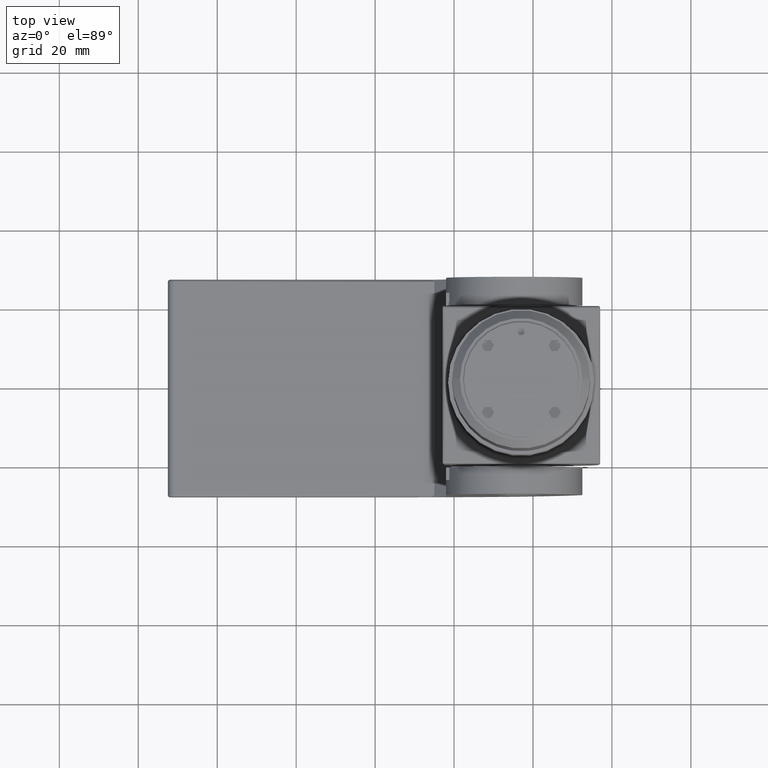
[diagram: clean part render]
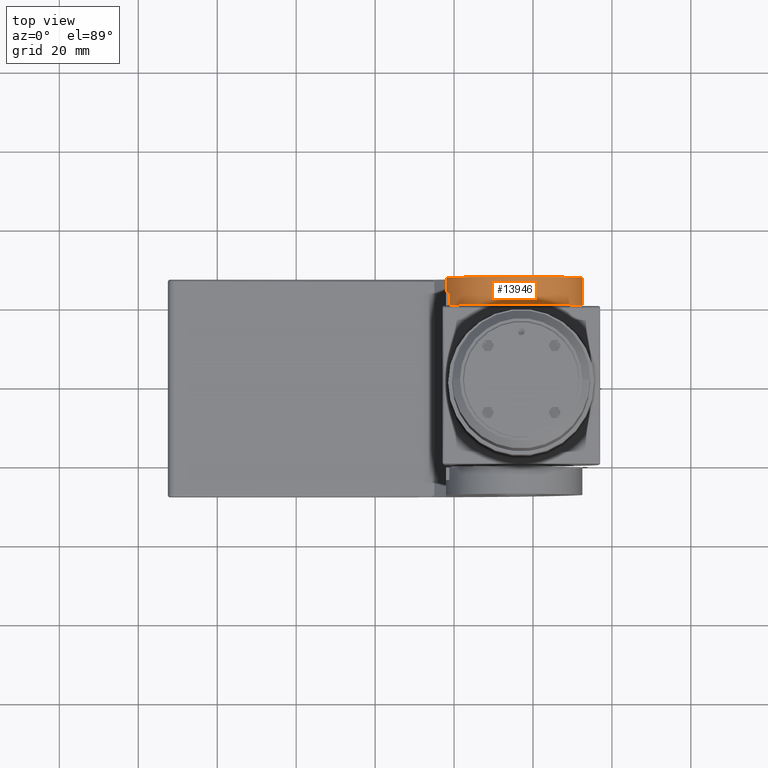
[diagram: same view with one face highlighted and labeled with its STEP entity id]
A machine part, top view. The second image highlights one B-rep face of the part: STEP entity #13946.
In plain terms, the highlighted cylindrical surface (partial cylindrical patch) has radius 17.25 mm, axis along (-0, -1, -0).
Its self-contained STEP definition (entity closure, byte-faithful):
#945 = CARTESIAN_POINT ( 'NONE',  ( 52.50000000000000711, 27.50000000000000000, 8.249999999999998224 ) ) ;
#1084 = DIRECTION ( 'NONE',  ( 0.000000000000000000, 1.000000000000000000, 0.000000000000000000 ) ) ;
#1933 = VERTEX_POINT ( 'NONE', #15380 ) ;
#2870 = CARTESIAN_POINT ( 'NONE',  ( 35.25000000000000000, 20.50000000000000000, 8.249999999999996447 ) ) ;
#3189 = EDGE_CURVE ( 'NONE', #5436, #10069, #9364, .T. ) ;
#3526 = CARTESIAN_POINT ( 'NONE',  ( 35.25000000000000000, 27.50000000000000000, 8.249999999999996447 ) ) ;
#3913 = LINE ( 'NONE', #21439, #13134 ) ;
#4032 = EDGE_CURVE ( 'NONE', #19943, #6003, #5974, .T. ) ;
#4467 = VECTOR ( 'NONE', #17293, 1000.000000000000000 ) ;
#4487 = CARTESIAN_POINT ( 'NONE',  ( 17.99999999999998934, 27.50000000000000000, 8.249999999999992895 ) ) ;
#5436 = VERTEX_POINT ( 'NONE', #15552 ) ;
#5974 = CIRCLE ( 'NONE', #7365, 17.25000000000000711 ) ;
#6003 = VERTEX_POINT ( 'NONE', #945 ) ;
#6641 = ORIENTED_EDGE ( 'NONE', *, *, #15896, .T. ) ;
#6684 = DIRECTION ( 'NONE',  ( -0.000000000000000000, -1.000000000000000000, -0.000000000000000000 ) ) ;
#6850 = DIRECTION ( 'NONE',  ( 0.000000000000000000, 0.000000000000000000, 1.000000000000000000 ) ) ;
#7284 = DIRECTION ( 'NONE',  ( 0.000000000000000000, 0.000000000000000000, -1.000000000000000000 ) ) ;
#7365 = AXIS2_PLACEMENT_3D ( 'NONE', #18627, #22773, #6850 ) ;
#9364 = CIRCLE ( 'NONE', #14478, 17.25000000000000711 ) ;
#9667 = DIRECTION ( 'NONE',  ( -0.000000000000000000, -1.000000000000000000, -0.000000000000000000 ) ) ;
#10069 = VERTEX_POINT ( 'NONE', #17153 ) ;
#10816 = DIRECTION ( 'NONE',  ( -0.000000000000000000, 1.000000000000000000, 0.000000000000000000 ) ) ;
#11342 = CARTESIAN_POINT ( 'NONE',  ( 18.81832327484500667, 23.75000000000000000, 13.49999999999999645 ) ) ;
#11728 = VECTOR ( 'NONE', #6684, 1000.000000000000000 ) ;
#12766 = LINE ( 'NONE', #23080, #4467 ) ;
#12811 = CARTESIAN_POINT ( 'NONE',  ( 35.25000000000000000, 23.75000000000000000, 8.249999999999996447 ) ) ;
#13134 = VECTOR ( 'NONE', #9667, 1000.000000000000000 ) ;
#13233 = AXIS2_PLACEMENT_3D ( 'NONE', #3526, #25035, #7284 ) ;
#13338 = CYLINDRICAL_SURFACE ( 'NONE', #13233, 17.25000000000000711 ) ;
#13447 = CARTESIAN_POINT ( 'NONE',  ( 17.99999999999998934, 27.50000000000000000, 8.249999999999992895 ) ) ;
#13771 = EDGE_CURVE ( 'NONE', #1933, #14402, #19105, .T. ) ;
#13946 = ADVANCED_FACE ( 'NONE', ( #25371 ), #13338, .T. ) ;
#14402 = VERTEX_POINT ( 'NONE', #11342 ) ;
#14478 = AXIS2_PLACEMENT_3D ( 'NONE', #2870, #10816, #18625 ) ;
#14483 = ORIENTED_EDGE ( 'NONE', *, *, #23379, .F. ) ;
#15380 = CARTESIAN_POINT ( 'NONE',  ( 17.99999999999998934, 23.75000000000000000, 8.249999999999992895 ) ) ;
#15525 = ORIENTED_EDGE ( 'NONE', *, *, #13771, .T. ) ;
#15552 = CARTESIAN_POINT ( 'NONE',  ( 18.81832327484500667, 20.50000000000000000, 13.49999999999999645 ) ) ;
#15896 = EDGE_CURVE ( 'NONE', #19943, #1933, #23437, .T. ) ;
#17153 = CARTESIAN_POINT ( 'NONE',  ( 52.50000000000000711, 20.50000000000000000, 8.249999999999998224 ) ) ;
#17293 = DIRECTION ( 'NONE',  ( -0.000000000000000000, -1.000000000000000000, -0.000000000000000000 ) ) ;
#17673 = ORIENTED_EDGE ( 'NONE', *, *, #4032, .F. ) ;
#18625 = DIRECTION ( 'NONE',  ( 0.000000000000000000, 0.000000000000000000, 1.000000000000000000 ) ) ;
#18627 = CARTESIAN_POINT ( 'NONE',  ( 35.25000000000000000, 27.50000000000000000, 8.249999999999996447 ) ) ;
#19105 = CIRCLE ( 'NONE', #21621, 17.25000000000000711 ) ;
#19943 = VERTEX_POINT ( 'NONE', #13447 ) ;
#20319 = ORIENTED_EDGE ( 'NONE', *, *, #3189, .T. ) ;
#21439 = CARTESIAN_POINT ( 'NONE',  ( 18.81832327484500667, 27.50000000000000000, 13.49999999999999645 ) ) ;
#21541 = EDGE_CURVE ( 'NONE', #14402, #5436, #3913, .T. ) ;
#21621 = AXIS2_PLACEMENT_3D ( 'NONE', #12811, #1084, #22694 ) ;
#22694 = DIRECTION ( 'NONE',  ( 0.000000000000000000, 0.000000000000000000, 1.000000000000000000 ) ) ;
#22773 = DIRECTION ( 'NONE',  ( 0.000000000000000000, 1.000000000000000000, 0.000000000000000000 ) ) ;
#22967 = EDGE_LOOP ( 'NONE', ( #15525, #22971, #20319, #14483, #17673, #6641 ) ) ;
#22971 = ORIENTED_EDGE ( 'NONE', *, *, #21541, .T. ) ;
#23080 = CARTESIAN_POINT ( 'NONE',  ( 52.50000000000000711, 27.50000000000000000, 8.249999999999998224 ) ) ;
#23379 = EDGE_CURVE ( 'NONE', #6003, #10069, #12766, .T. ) ;
#23437 = LINE ( 'NONE', #4487, #11728 ) ;
#25035 = DIRECTION ( 'NONE',  ( -0.000000000000000000, -1.000000000000000000, -0.000000000000000000 ) ) ;
#25371 = FACE_OUTER_BOUND ( 'NONE', #22967, .T. ) ;